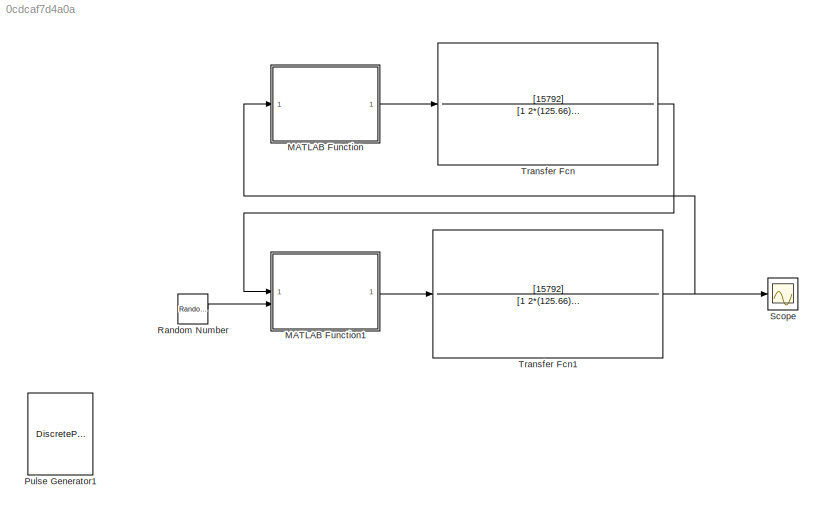
MODEL slx_0cdcaf7d4a0a
KIND model
CONFIG AbsTol = auto
CONFIG EnableMultiTasking = off
CONFIG FixedStep = 1e-5
CONFIG MaxStep = 0.01
CONFIG MinStep = auto
CONFIG RelTol = 1e-5
CONFIG SampleTimeConstraint = Unconstrained
CONFIG SolverName = FixedStepAuto
CONFIG StartTime = 0.0
CONFIG StopTime = 10
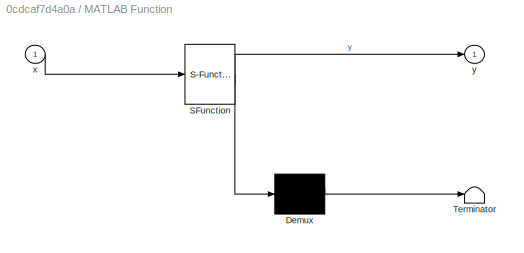
BLOCK [SubSystem] MATLAB Function
  ErrorFcn = Stateflow.Translate.translate
  LibrarySourceBlock = simulink/User-Defined\nFunctions/MATLAB Function
  PermitHierarchicalResolution = ExplicitOnly
  SFBlockType = MATLAB Function
  TreatAsAtomicUnit = on
BLOCK [Demux] MATLAB Function/ Demux 
  Outputs = 1
BLOCK [S-Function] MATLAB Function/ SFunction 
  EnableBusSupport = off
  FunctionName = sf_sfun
  PortCounts = [1 2]
  SFcnIsStateOwnerBlock = off
  SFunctionDeploymentMode = off
  Tag = Stateflow S-Function 2
BLOCK [Terminator] MATLAB Function/ Terminator 
BLOCK [Inport] MATLAB Function/x
BLOCK [Outport] MATLAB Function/y
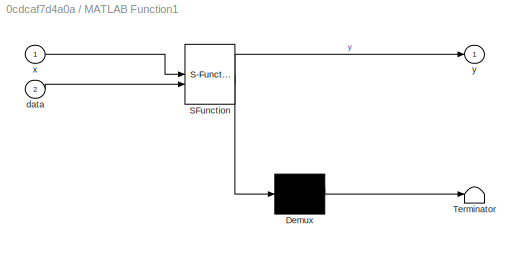
BLOCK [SubSystem] MATLAB Function1
  ErrorFcn = Stateflow.Translate.translate
  LibrarySourceBlock = simulink/User-Defined\nFunctions/MATLAB Function
  PermitHierarchicalResolution = ExplicitOnly
  SFBlockType = MATLAB Function
  TreatAsAtomicUnit = on
BLOCK [Demux] MATLAB Function1/ Demux 
  Outputs = 1
BLOCK [S-Function] MATLAB Function1/ SFunction 
  EnableBusSupport = off
  FunctionName = sf_sfun
  PortCounts = [2 2]
  SFcnIsStateOwnerBlock = off
  SFunctionDeploymentMode = off
  Tag = Stateflow S-Function 1
BLOCK [Terminator] MATLAB Function1/ Terminator 
BLOCK [Inport] MATLAB Function1/data
  Port = 2
BLOCK [Inport] MATLAB Function1/x
BLOCK [Outport] MATLAB Function1/y
BLOCK [DiscretePulseGenerator] Pulse Generator1
  Amplitude = 0.1
  Commented = on
  Period = 2e6
  PulseWidth = 2e2
  SampleTime = 1e-5
BLOCK [RandomNumber] Random Number
  SampleTime = 1e-5
  Variance = 1e-6
BLOCK [Scope] Scope
  ActiveDisplayYMaximum = 0.15125537083968055
  ActiveDisplayYMinimum = -0.15125538506255762
  Floating = off
  GraphicalSettings = {"Style":{"BackgroundColor":[0.12941176470588237,0.12941176470588237,0.12941176470588237],"AxesColor":[0.07058823529411765,0.07058823529411765,0.07058823529411765],"LabelsColor":[0.8509803921568627,0.8509803921568627,0.8509803921568627],"PreserveColors":false,"Visible":[true],"LineStyle":["-"],"LineWidth":[1.5],"BarWidth":[0.9],"LineColor":["auto"],"LineFaceAlpha":[1],"LineEdgeAlpha":[1],"Marker":...<+2018ch>
  MultipleDisplayCache = [{"MaxYLimMag":0.15125538506255762,"MaxYLimReal":0.15125537083968055,"MinYLimMag":0,"MinYLimReal":-0.15125538506255762,"PlotAsMagnitudePhase":false,"ShowGrid":true,"ShowLegend":false,"Title":"%<SignalLabel>","YLabel":""}]
  NumInputPorts = 1
  ScopeFrameLocation = window
  WasSavedAsWebScope = on
  WindowPosition = [680.000000,330.000000,560.000000,420.000000,]
BLOCK [TransferFcn] Transfer Fcn
  Denominator = [1 2*(125.66) (125.66)^2]
  Numerator = [15792]
BLOCK [TransferFcn] Transfer Fcn1
  Denominator = [1 2*(125.66) (125.66)^2]
  Numerator = [15792]
LINE MATLAB Function1:1 -> Transfer Fcn1:1
LINE MATLAB Function:1 -> Transfer Fcn:1
LINE Random Number:1 -> MATLAB Function1:2
NET Transfer Fcn1:1 -> MATLAB Function:1, Scope:1
LINE Transfer Fcn:1 -> MATLAB Function1:1
note: NET lines group one-source signal fan-out (src -> all destinations, sorted); 1:1 wires keep LINE
CHART MATLAB Function1 states=1 transitions=1
  STATE_LABEL 'eML_blk_kernel()'
  STATE_LABEL 'SCRIPT:\nfunction y = STN_sigmoid(x, data)\n\ng = 1.5; % Sharpness parameter for GPe\ny = (2/pi)*atan((data-x)/g);\n\nend'
CHART MATLAB Function states=1 transitions=1
  STATE_LABEL 'eML_blk_kernel()'
  STATE_LABEL 'SCRIPT:\n% function y = GPe_sigmoid(x)\n% function y = GPe_sigmoid(x)\n% function y = GPe_sigmoid(x)\n%     % Create h values from 1 to 0.01 and back to 1\n%     h_values = [1:-0.25:0.01, 0.01:0.25:1]; \n%     num_h = length(h_values); % Number of h values\n% \n%     % Preallocate output y as a 1D array with size based on h_values\n%     y = zeros(num_h, 1); % One output value for each h\n% \n%     % Loop th...<+568ch>'
CHART  states=0 transitions=0
CHART  states=0 transitions=0
